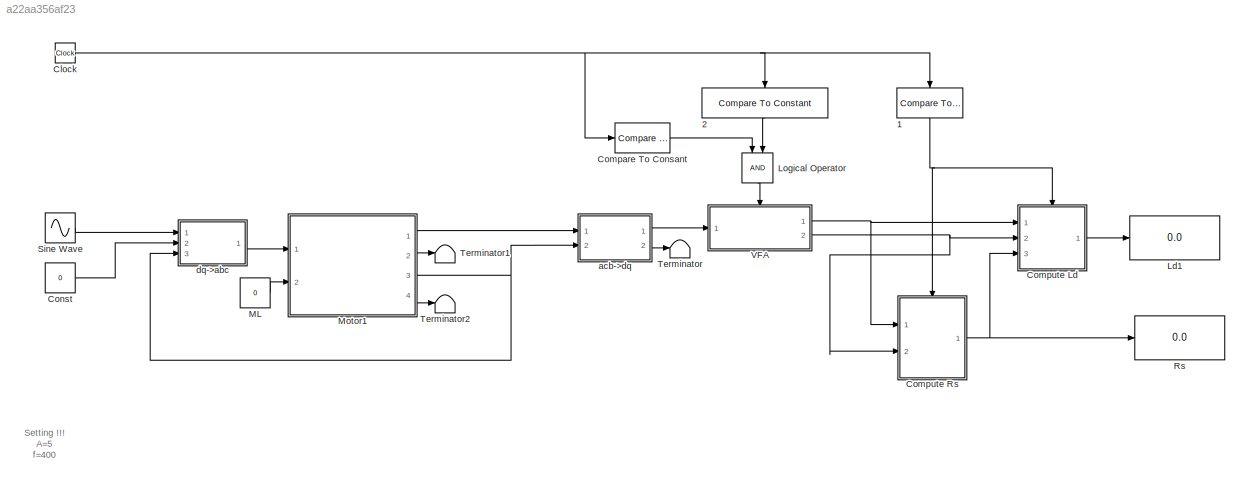
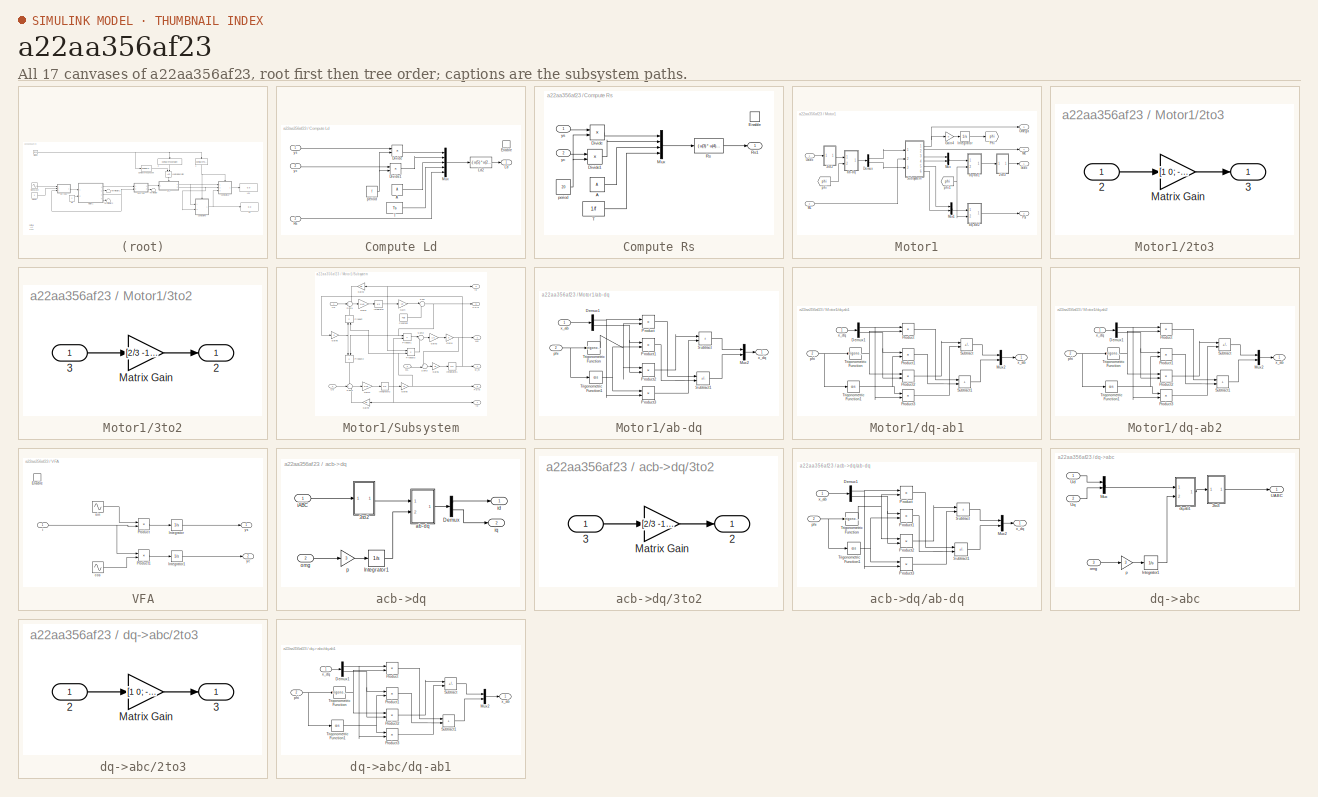
[diagram: thumbnail index - all 17 canvases of the model, root first then tree order]
MODEL mdl_a22aa356af23
KIND model
CONFIG AbsTol = auto
CONFIG EnableMultiTasking = on
CONFIG FixedStep = Ts
CONFIG MaxStep = auto
CONFIG MinStep = auto
CONFIG RelTol = 1e-3
CONFIG SampleTimeConstraint = Unconstrained
CONFIG SolverName = ode4
CONFIG StartTime = 0.0
CONFIG StopTime = 10.0
BLOCK [Reference] 1  REF=simulink/Logic and Bit
Operations/Compare
To Constant
  NameLocation = left
  Ports = [1, 1]
  SourceBlock = simulink/Logic and Bit\nOperations/Compare\nTo Constant
  SourceProductBaseCode = SL
  SourceType = Compare To Constant
BLOCK [Reference] 2  REF=simulink/Logic and Bit
Operations/Compare
To Constant
  NameLocation = left
  Ports = [1, 1]
  SourceBlock = simulink/Logic and Bit\nOperations/Compare\nTo Constant
  SourceProductBaseCode = SL
  SourceType = Compare To Constant
BLOCK [Clock] Clock
BLOCK [Reference] Compare To Consant  REF=simulink/Logic and Bit
Operations/Compare
To Constant
  Ports = [1, 1]
  SourceBlock = simulink/Logic and Bit\nOperations/Compare\nTo Constant
  SourceProductBaseCode = SL
  SourceType = Compare To Constant
BLOCK [SubSystem] Compute Ld
  Ports = [3, 1, 1]
  RequestExecContextInheritance = off
  TreatAsAtomicUnit = on
BLOCK [Constant] Compute Ld/A
  Value = A
BLOCK [Product] Compute Ld/Divide
  Inputs = */
  Ports = [2, 1]
BLOCK [Product] Compute Ld/Divide1
  Inputs = */
  Ports = [2, 1]
BLOCK [EnablePort] Compute Ld/Enable
  Ports = []
BLOCK [Outport] Compute Ld/Ld
BLOCK [Fcn] Compute Ld/Ld2
  Expr = -( u(5) * u(2) ) / ( u(1) * 2*pi*f )
BLOCK [Mux] Compute Ld/Mux
  DisplayOption = bar
  Inputs = 5
  Ports = [5, 1]
BLOCK [Inport] Compute Ld/Rs
  Port = 3
BLOCK [Constant] Compute Ld/T
  Value = Ts
BLOCK [Constant] Compute Ld/period
  Value = f
BLOCK [Inport] Compute Ld/yc
  Port = 2
BLOCK [Inport] Compute Ld/ys
BLOCK [SubSystem] Compute Rs
  Ports = [2, 1, 1]
  RequestExecContextInheritance = off
  TreatAsAtomicUnit = on
BLOCK [Constant] Compute Rs/A
  Value = A
BLOCK [Product] Compute Rs/Divide
  Inputs = */
  Ports = [2, 1]
BLOCK [Product] Compute Rs/Divide1
  Inputs = */
  Ports = [2, 1]
BLOCK [EnablePort] Compute Rs/Enable
  Ports = []
  PropagateVarSize = During execution
BLOCK [Mux] Compute Rs/Mux
  DisplayOption = bar
  Ports = [4, 1]
BLOCK [Fcn] Compute Rs/Rs
  Expr = ( u(3) * u(4) * u(1) ) / ( 2 * ( u(1)^2 + u(2)^2 ) )
BLOCK [Outport] Compute Rs/Rs1
BLOCK [Constant] Compute Rs/T
  Value = 1/f
BLOCK [Constant] Compute Rs/period
  Value = 20
BLOCK [Inport] Compute Rs/yc
  Port = 2
BLOCK [Inport] Compute Rs/ys
BLOCK [Constant] Const
  Value = 0
BLOCK [Display] Ld1
  Decimation = 1
  Ports = [1]
BLOCK [Logic] Logical Operator
  AllPortsSameDT = off
  NameLocation = left
  OutDataTypeStr = boolean
  Ports = [2, 1]
BLOCK [Constant] ML
  Value = 0
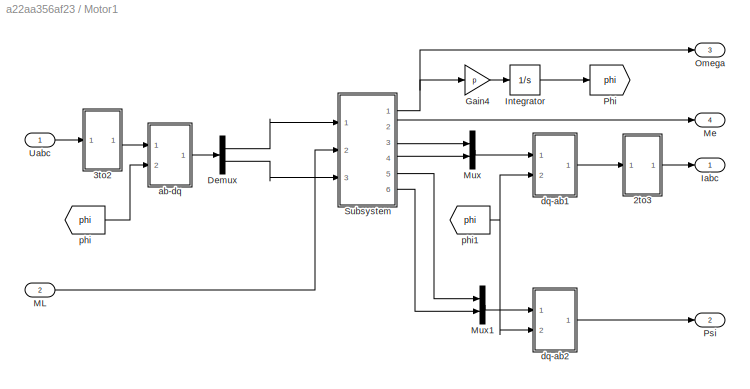
BLOCK [SubSystem] Motor1
  Ports = [2, 4]
  RequestExecContextInheritance = off
BLOCK [SubSystem] Motor1/2to3
  Ports = [1, 1]
  RequestExecContextInheritance = off
BLOCK [Inport] Motor1/2to3/2
BLOCK [Outport] Motor1/2to3/3
BLOCK [Gain] Motor1/2to3/Matrix Gain
  Gain = [1 0; -1/2 sqrt(3)/2; -1/2 -sqrt(3)/2]
  Multiplication = Matrix(K*u)
  OutDataTypeStr = Inherit: Same as input
  ParamDataTypeStr = Inherit: Same as input
  SaturateOnIntegerOverflow = on
BLOCK [SubSystem] Motor1/3to2
  Ports = [1, 1]
  RequestExecContextInheritance = off
BLOCK [Outport] Motor1/3to2/2
BLOCK [Inport] Motor1/3to2/3
BLOCK [Gain] Motor1/3to2/Matrix Gain
  Gain = [2/3 -1/3 -1/3 ; 0 1/sqrt(3) -1/sqrt(3)]
  Multiplication = Matrix(K*u)
  OutDataTypeStr = Inherit: Same as input
  ParamDataTypeStr = Inherit: Same as input
  SaturateOnIntegerOverflow = on
BLOCK [Demux] Motor1/Demux
  Outputs = 2
  Ports = [1, 2]
BLOCK [Gain] Motor1/Gain4
  Gain = p
BLOCK [Outport] Motor1/Iabc
BLOCK [Integrator] Motor1/Integrator
  Ports = [1, 1]
BLOCK [Inport] Motor1/ML
  Port = 2
BLOCK [Outport] Motor1/Me
  Port = 4
BLOCK [Mux] Motor1/Mux
  DisplayOption = bar
  Inputs = 2
  Ports = [2, 1]
BLOCK [Mux] Motor1/Mux1
  DisplayOption = bar
  Inputs = 2
  Ports = [2, 1]
BLOCK [Outport] Motor1/Omega
  Port = 3
BLOCK [Goto] Motor1/Phi
  GotoTag = phi
BLOCK [Outport] Motor1/Psi
  Port = 2
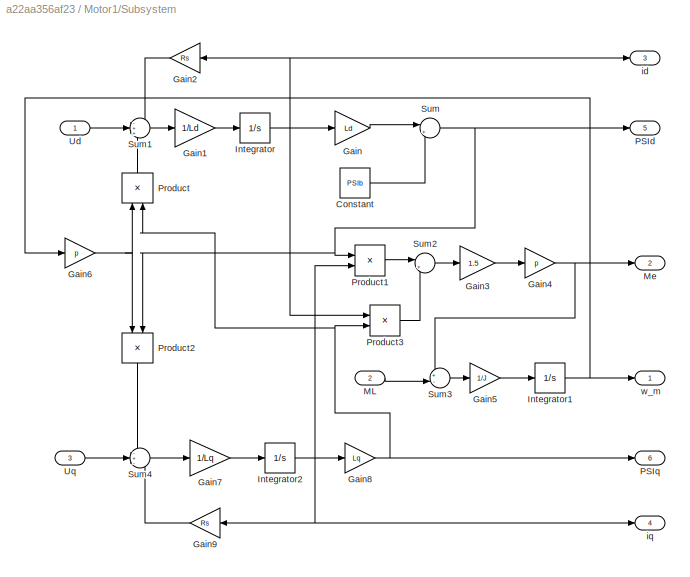
BLOCK [SubSystem] Motor1/Subsystem
  Ports = [3, 6]
  RequestExecContextInheritance = off
BLOCK [Constant] Motor1/Subsystem/Constant
  Value = PSIb
BLOCK [Gain] Motor1/Subsystem/Gain
  Gain = Ld
BLOCK [Gain] Motor1/Subsystem/Gain1
  Gain = 1/Ld
BLOCK [Gain] Motor1/Subsystem/Gain2
  Gain = Rs
BLOCK [Gain] Motor1/Subsystem/Gain3
  Gain = 1.5
BLOCK [Gain] Motor1/Subsystem/Gain4
  Gain = p
BLOCK [Gain] Motor1/Subsystem/Gain5
  Gain = 1/J
BLOCK [Gain] Motor1/Subsystem/Gain6
  Gain = p
BLOCK [Gain] Motor1/Subsystem/Gain7
  Gain = 1/Lq
BLOCK [Gain] Motor1/Subsystem/Gain8
  Gain = Lq
BLOCK [Gain] Motor1/Subsystem/Gain9
  Gain = Rs
BLOCK [Integrator] Motor1/Subsystem/Integrator
  Ports = [1, 1]
BLOCK [Integrator] Motor1/Subsystem/Integrator1
  Ports = [1, 1]
BLOCK [Integrator] Motor1/Subsystem/Integrator2
  Ports = [1, 1]
BLOCK [Inport] Motor1/Subsystem/ML
  Port = 2
BLOCK [Outport] Motor1/Subsystem/Me
  Port = 2
BLOCK [Outport] Motor1/Subsystem/PSId
  Port = 5
BLOCK [Outport] Motor1/Subsystem/PSIq
  Port = 6
BLOCK [Product] Motor1/Subsystem/Product
  NameLocation = right
  Ports = [2, 1]
  RndMeth = Zero
BLOCK [Product] Motor1/Subsystem/Product1
  Ports = [2, 1]
  RndMeth = Zero
BLOCK [Product] Motor1/Subsystem/Product2
  NameLocation = left
  Ports = [2, 1]
  RndMeth = Zero
BLOCK [Product] Motor1/Subsystem/Product3
  Ports = [2, 1]
  RndMeth = Zero
BLOCK [Sum] Motor1/Subsystem/Sum
  Inputs = |++
  Ports = [2, 1]
BLOCK [Sum] Motor1/Subsystem/Sum1
  Inputs = -++
  Ports = [3, 1]
BLOCK [Sum] Motor1/Subsystem/Sum2
  Inputs = |+-
  Ports = [2, 1]
BLOCK [Sum] Motor1/Subsystem/Sum3
  Inputs = +-|
  Ports = [2, 1]
BLOCK [Sum] Motor1/Subsystem/Sum4
  Inputs = -+-
  Ports = [3, 1]
BLOCK [Inport] Motor1/Subsystem/Ud
BLOCK [Inport] Motor1/Subsystem/Uq
  Port = 3
BLOCK [Outport] Motor1/Subsystem/id
  Port = 3
BLOCK [Outport] Motor1/Subsystem/iq
  Port = 4
BLOCK [Outport] Motor1/Subsystem/w_m
BLOCK [Inport] Motor1/Uabc
BLOCK [SubSystem] Motor1/ab-dq
  Ports = [2, 1]
  RequestExecContextInheritance = off
BLOCK [Demux] Motor1/ab-dq/Demux1
  Outputs = 2
  Ports = [1, 2]
BLOCK [Mux] Motor1/ab-dq/Mux2
  DisplayOption = bar
  Inputs = 2
  Ports = [2, 1]
BLOCK [Product] Motor1/ab-dq/Product
  Ports = [2, 1]
  RndMeth = Zero
BLOCK [Product] Motor1/ab-dq/Product1
  Ports = [2, 1]
  RndMeth = Zero
BLOCK [Product] Motor1/ab-dq/Product2
  Ports = [2, 1]
  RndMeth = Zero
BLOCK [Product] Motor1/ab-dq/Product3
  Ports = [2, 1]
  RndMeth = Zero
BLOCK [Sum] Motor1/ab-dq/Subtract
  IconShape = rectangular
  Ports = [2, 1]
BLOCK [Sum] Motor1/ab-dq/Subtract1
  IconShape = rectangular
  Inputs = -+
  Ports = [2, 1]
BLOCK [Trigonometry] Motor1/ab-dq/Trigonometric Function
  Ports = [1, 1]
BLOCK [Trigonometry] Motor1/ab-dq/Trigonometric Function1
  Operator = cos
  Ports = [1, 1]
BLOCK [Inport] Motor1/ab-dq/phi
  Port = 2
BLOCK [Inport] Motor1/ab-dq/x_ab
BLOCK [Outport] Motor1/ab-dq/x_dq
BLOCK [SubSystem] Motor1/dq-ab1
  Ports = [2, 1]
  RequestExecContextInheritance = off
BLOCK [Demux] Motor1/dq-ab1/Demux1
  Outputs = 2
  Ports = [1, 2]
BLOCK [Mux] Motor1/dq-ab1/Mux2
  DisplayOption = bar
  Inputs = 2
  Ports = [2, 1]
BLOCK [Product] Motor1/dq-ab1/Product
  Ports = [2, 1]
  RndMeth = Zero
BLOCK [Product] Motor1/dq-ab1/Product1
  Ports = [2, 1]
  RndMeth = Zero
BLOCK [Product] Motor1/dq-ab1/Product2
  Ports = [2, 1]
  RndMeth = Zero
BLOCK [Product] Motor1/dq-ab1/Product3
  Ports = [2, 1]
  RndMeth = Zero
BLOCK [Sum] Motor1/dq-ab1/Subtract
  IconShape = rectangular
  Inputs = -+
  Ports = [2, 1]
BLOCK [Sum] Motor1/dq-ab1/Subtract1
  IconShape = rectangular
  Ports = [2, 1]
BLOCK [Trigonometry] Motor1/dq-ab1/Trigonometric Function
  Ports = [1, 1]
BLOCK [Trigonometry] Motor1/dq-ab1/Trigonometric Function1
  Operator = cos
  Ports = [1, 1]
BLOCK [Inport] Motor1/dq-ab1/phi
  Port = 2
BLOCK [Outport] Motor1/dq-ab1/x_ab
BLOCK [Inport] Motor1/dq-ab1/x_dq
BLOCK [SubSystem] Motor1/dq-ab2
  Ports = [2, 1]
  RequestExecContextInheritance = off
BLOCK [Demux] Motor1/dq-ab2/Demux1
  Outputs = 2
  Ports = [1, 2]
BLOCK [Mux] Motor1/dq-ab2/Mux2
  DisplayOption = bar
  Inputs = 2
  Ports = [2, 1]
BLOCK [Product] Motor1/dq-ab2/Product
  Ports = [2, 1]
  RndMeth = Zero
BLOCK [Product] Motor1/dq-ab2/Product1
  Ports = [2, 1]
  RndMeth = Zero
BLOCK [Product] Motor1/dq-ab2/Product2
  Ports = [2, 1]
  RndMeth = Zero
BLOCK [Product] Motor1/dq-ab2/Product3
  Ports = [2, 1]
  RndMeth = Zero
BLOCK [Sum] Motor1/dq-ab2/Subtract
  IconShape = rectangular
  Inputs = -+
  Ports = [2, 1]
BLOCK [Sum] Motor1/dq-ab2/Subtract1
  IconShape = rectangular
  Ports = [2, 1]
BLOCK [Trigonometry] Motor1/dq-ab2/Trigonometric Function
  Ports = [1, 1]
BLOCK [Trigonometry] Motor1/dq-ab2/Trigonometric Function1
  Operator = cos
  Ports = [1, 1]
BLOCK [Inport] Motor1/dq-ab2/phi
  Port = 2
BLOCK [Outport] Motor1/dq-ab2/x_ab
BLOCK [Inport] Motor1/dq-ab2/x_dq
BLOCK [From] Motor1/phi
  CloseFcn = tagdialog Close
  GotoTag = phi
BLOCK [From] Motor1/phi1
  CloseFcn = tagdialog Close
  GotoTag = phi
BLOCK [Display] Rs
  Decimation = 1
  Ports = [1]
BLOCK [Sin] Sine Wave
  Amplitude = A
  Frequency = 2*pi*f
  Ports = [0, 1]
  SampleTime = 0
BLOCK [Terminator] Terminator
BLOCK [Terminator] Terminator1
BLOCK [Terminator] Terminator2
BLOCK [SubSystem] VFA
  Ports = [1, 2, 1]
  RequestExecContextInheritance = off
  TreatAsAtomicUnit = on
BLOCK [EnablePort] VFA/Enable
  Ports = []
  StatesWhenEnabling = reset
BLOCK [Integrator] VFA/Integrator
  Ports = [1, 1]
BLOCK [Integrator] VFA/Integrator1
  Ports = [1, 1]
BLOCK [Product] VFA/Product
  Ports = [2, 1]
BLOCK [Product] VFA/Product1
  Ports = [2, 1]
BLOCK [Sin] VFA/cos
  Frequency = 2*pi*f
  Phase = pi/2
  Ports = [0, 1]
BLOCK [Inport] VFA/i
  SampleTime = 125e-6
BLOCK [Sin] VFA/sin
  Frequency = 2*pi*f
  Ports = [0, 1]
  SampleTime = 0
BLOCK [Outport] VFA/yc
  Port = 2
BLOCK [Outport] VFA/ys
BLOCK [SubSystem] acb->dq
  Ports = [2, 2]
  RequestExecContextInheritance = off
  TreatAsAtomicUnit = on
BLOCK [SubSystem] acb->dq/3to2
  Ports = [1, 1]
  RequestExecContextInheritance = off
BLOCK [Outport] acb->dq/3to2/2
BLOCK [Inport] acb->dq/3to2/3
BLOCK [Gain] acb->dq/3to2/Matrix Gain
  Gain = [2/3 -1/3 -1/3 ; 0 1/sqrt(3) -1/sqrt(3)]
  Multiplication = Matrix(K*u)
  OutDataTypeStr = Inherit: Same as input
  ParamDataTypeStr = Inherit: Same as input
  SaturateOnIntegerOverflow = on
BLOCK [Demux] acb->dq/Demux
  Outputs = 2
  Ports = [1, 2]
BLOCK [Integrator] acb->dq/Integrator1
  Ports = [1, 1]
BLOCK [SubSystem] acb->dq/ab-dq
  Ports = [2, 1]
  RequestExecContextInheritance = off
BLOCK [Demux] acb->dq/ab-dq/Demux1
  Outputs = 2
  Ports = [1, 2]
BLOCK [Mux] acb->dq/ab-dq/Mux2
  DisplayOption = bar
  Inputs = 2
  Ports = [2, 1]
BLOCK [Product] acb->dq/ab-dq/Product
  Ports = [2, 1]
  RndMeth = Zero
BLOCK [Product] acb->dq/ab-dq/Product1
  Ports = [2, 1]
  RndMeth = Zero
BLOCK [Product] acb->dq/ab-dq/Product2
  Ports = [2, 1]
  RndMeth = Zero
BLOCK [Product] acb->dq/ab-dq/Product3
  Ports = [2, 1]
  RndMeth = Zero
BLOCK [Sum] acb->dq/ab-dq/Subtract
  IconShape = rectangular
  Ports = [2, 1]
BLOCK [Sum] acb->dq/ab-dq/Subtract1
  IconShape = rectangular
  Inputs = -+
  Ports = [2, 1]
BLOCK [Trigonometry] acb->dq/ab-dq/Trigonometric Function
  Ports = [1, 1]
BLOCK [Trigonometry] acb->dq/ab-dq/Trigonometric Function1
  Operator = cos
  Ports = [1, 1]
BLOCK [Inport] acb->dq/ab-dq/phi
  Port = 2
BLOCK [Inport] acb->dq/ab-dq/x_ab
BLOCK [Outport] acb->dq/ab-dq/x_dq
BLOCK [Inport] acb->dq/iABC
BLOCK [Outport] acb->dq/id
BLOCK [Outport] acb->dq/iq
  Port = 2
BLOCK [Inport] acb->dq/omg
  Port = 2
BLOCK [Gain] acb->dq/p
  Gain = 3
BLOCK [SubSystem] dq->abc
  Ports = [3, 1]
  RequestExecContextInheritance = off
BLOCK [SubSystem] dq->abc/2to3
  Ports = [1, 1]
  RequestExecContextInheritance = off
BLOCK [Inport] dq->abc/2to3/2
BLOCK [Outport] dq->abc/2to3/3
BLOCK [Gain] dq->abc/2to3/Matrix Gain
  Gain = [1 0; -1/2 sqrt(3)/2; -1/2 -sqrt(3)/2]
  Multiplication = Matrix(K*u)
  OutDataTypeStr = Inherit: Same as input
  ParamDataTypeStr = Inherit: Same as input
  SaturateOnIntegerOverflow = on
BLOCK [Integrator] dq->abc/Integrator1
  Ports = [1, 1]
BLOCK [Mux] dq->abc/Mux
  DisplayOption = bar
  Inputs = 2
  Ports = [2, 1]
BLOCK [Outport] dq->abc/UABC
BLOCK [Inport] dq->abc/Ud
BLOCK [Inport] dq->abc/Uq
  Port = 2
BLOCK [SubSystem] dq->abc/dq-ab1
  Ports = [2, 1]
  RequestExecContextInheritance = off
BLOCK [Demux] dq->abc/dq-ab1/Demux1
  Outputs = 2
  Ports = [1, 2]
BLOCK [Mux] dq->abc/dq-ab1/Mux2
  DisplayOption = bar
  Inputs = 2
  Ports = [2, 1]
BLOCK [Product] dq->abc/dq-ab1/Product
  Ports = [2, 1]
  RndMeth = Zero
BLOCK [Product] dq->abc/dq-ab1/Product1
  Ports = [2, 1]
  RndMeth = Zero
BLOCK [Product] dq->abc/dq-ab1/Product2
  Ports = [2, 1]
  RndMeth = Zero
BLOCK [Product] dq->abc/dq-ab1/Product3
  Ports = [2, 1]
  RndMeth = Zero
BLOCK [Sum] dq->abc/dq-ab1/Subtract
  IconShape = rectangular
  Inputs = -+
  Ports = [2, 1]
BLOCK [Sum] dq->abc/dq-ab1/Subtract1
  IconShape = rectangular
  Ports = [2, 1]
BLOCK [Trigonometry] dq->abc/dq-ab1/Trigonometric Function
  Ports = [1, 1]
BLOCK [Trigonometry] dq->abc/dq-ab1/Trigonometric Function1
  Operator = cos
  Ports = [1, 1]
BLOCK [Inport] dq->abc/dq-ab1/phi
  Port = 2
BLOCK [Outport] dq->abc/dq-ab1/x_ab
BLOCK [Inport] dq->abc/dq-ab1/x_dq
BLOCK [Inport] dq->abc/omg
  Port = 3
BLOCK [Gain] dq->abc/p
  Gain = 3
ANNOTATION (root): Setting !!! A=5 f=400
NET 1:1 -> Compute Ld:enable, Compute Rs:enable
LINE 2:1 -> Logical Operator:2
NET Clock:1 -> 1:1, 2:1, Compare To Consant:1
LINE Compare To Consant:1 -> Logical Operator:1
LINE Compute Ld/A:1 -> Compute Ld/Mux:3
LINE Compute Ld/Divide1:1 -> Compute Ld/Mux:2
LINE Compute Ld/Divide:1 -> Compute Ld/Mux:1
LINE Compute Ld/Ld2:1 -> Compute Ld/Ld:1
LINE Compute Ld/Mux:1 -> Compute Ld/Ld2:1
LINE Compute Ld/Rs:1 -> Compute Ld/Mux:5
LINE Compute Ld/T:1 -> Compute Ld/Mux:4
NET Compute Ld/period:1 -> Compute Ld/Divide1:2, Compute Ld/Divide:2
LINE Compute Ld/yc:1 -> Compute Ld/Divide1:1
LINE Compute Ld/ys:1 -> Compute Ld/Divide:1
LINE Compute Ld:1 -> Ld1:1
LINE Compute Rs/A:1 -> Compute Rs/Mux:3
LINE Compute Rs/Divide1:1 -> Compute Rs/Mux:2
LINE Compute Rs/Divide:1 -> Compute Rs/Mux:1
LINE Compute Rs/Mux:1 -> Compute Rs/Rs:1
LINE Compute Rs/Rs:1 -> Compute Rs/Rs1:1
LINE Compute Rs/T:1 -> Compute Rs/Mux:4
NET Compute Rs/period:1 -> Compute Rs/Divide1:2, Compute Rs/Divide:2
LINE Compute Rs/yc:1 -> Compute Rs/Divide1:1
LINE Compute Rs/ys:1 -> Compute Rs/Divide:1
NET Compute Rs:1 -> Compute Ld:3, Rs:1
LINE Const:1 -> dq->abc:2
LINE Logical Operator:1 -> VFA:enable
LINE ML:1 -> Motor1:2
LINE Motor1/2to3/2:1 -> Motor1/2to3/Matrix Gain:1
LINE Motor1/2to3/Matrix Gain:1 -> Motor1/2to3/3:1
LINE Motor1/2to3:1 -> Motor1/Iabc:1
LINE Motor1/3to2/3:1 -> Motor1/3to2/Matrix Gain:1
LINE Motor1/3to2/Matrix Gain:1 -> Motor1/3to2/2:1
LINE Motor1/3to2:1 -> Motor1/ab-dq:1
LINE Motor1/Demux:1 -> Motor1/Subsystem:1
LINE Motor1/Demux:2 -> Motor1/Subsystem:3
LINE Motor1/Gain4:1 -> Motor1/Integrator:1
LINE Motor1/Integrator:1 -> Motor1/Phi:1
LINE Motor1/ML:1 -> Motor1/Subsystem:2
LINE Motor1/Mux1:1 -> Motor1/dq-ab2:1
LINE Motor1/Mux:1 -> Motor1/dq-ab1:1
LINE Motor1/Subsystem/Constant:1 -> Motor1/Subsystem/Sum:2
LINE Motor1/Subsystem/Gain1:1 -> Motor1/Subsystem/Integrator:1
LINE Motor1/Subsystem/Gain2:1 -> Motor1/Subsystem/Sum1:1
LINE Motor1/Subsystem/Gain3:1 -> Motor1/Subsystem/Gain4:1
NET Motor1/Subsystem/Gain4:1 -> Motor1/Subsystem/Me:1, Motor1/Subsystem/Sum3:1
LINE Motor1/Subsystem/Gain5:1 -> Motor1/Subsystem/Integrator1:1
NET Motor1/Subsystem/Gain6:1 -> Motor1/Subsystem/Product2:1, Motor1/Subsystem/Product:1
LINE Motor1/Subsystem/Gain7:1 -> Motor1/Subsystem/Integrator2:1
NET Motor1/Subsystem/Gain8:1 -> Motor1/Subsystem/PSIq:1, Motor1/Subsystem/Product3:2, Motor1/Subsystem/Product:2
LINE Motor1/Subsystem/Gain9:1 -> Motor1/Subsystem/Sum4:3
LINE Motor1/Subsystem/Gain:1 -> Motor1/Subsystem/Sum:1
NET Motor1/Subsystem/Integrator1:1 -> Motor1/Subsystem/Gain6:1, Motor1/Subsystem/w_m:1
NET Motor1/Subsystem/Integrator2:1 -> Motor1/Subsystem/Gain8:1, Motor1/Subsystem/Gain9:1, Motor1/Subsystem/Product1:2, Motor1/Subsystem/iq:1
NET Motor1/Subsystem/Integrator:1 -> Motor1/Subsystem/Gain2:1, Motor1/Subsystem/Gain:1, Motor1/Subsystem/Product3:1, Motor1/Subsystem/id:1
LINE Motor1/Subsystem/ML:1 -> Motor1/Subsystem/Sum3:2
LINE Motor1/Subsystem/Product1:1 -> Motor1/Subsystem/Sum2:1
LINE Motor1/Subsystem/Product2:1 -> Motor1/Subsystem/Sum4:1
LINE Motor1/Subsystem/Product3:1 -> Motor1/Subsystem/Sum2:2
LINE Motor1/Subsystem/Product:1 -> Motor1/Subsystem/Sum1:3
LINE Motor1/Subsystem/Sum1:1 -> Motor1/Subsystem/Gain1:1
LINE Motor1/Subsystem/Sum2:1 -> Motor1/Subsystem/Gain3:1
LINE Motor1/Subsystem/Sum3:1 -> Motor1/Subsystem/Gain5:1
LINE Motor1/Subsystem/Sum4:1 -> Motor1/Subsystem/Gain7:1
NET Motor1/Subsystem/Sum:1 -> Motor1/Subsystem/PSId:1, Motor1/Subsystem/Product1:1, Motor1/Subsystem/Product2:2
LINE Motor1/Subsystem/Ud:1 -> Motor1/Subsystem/Sum1:2
LINE Motor1/Subsystem/Uq:1 -> Motor1/Subsystem/Sum4:2
NET Motor1/Subsystem:1 -> Motor1/Gain4:1, Motor1/Omega:1
LINE Motor1/Subsystem:2 -> Motor1/Me:1
LINE Motor1/Subsystem:3 -> Motor1/Mux:1
LINE Motor1/Subsystem:4 -> Motor1/Mux:2
LINE Motor1/Subsystem:5 -> Motor1/Mux1:1
LINE Motor1/Subsystem:6 -> Motor1/Mux1:2
LINE Motor1/Uabc:1 -> Motor1/3to2:1
NET Motor1/ab-dq/Demux1:1 -> Motor1/ab-dq/Product3:2, Motor1/ab-dq/Product:1
NET Motor1/ab-dq/Demux1:2 -> Motor1/ab-dq/Product1:1, Motor1/ab-dq/Product2:2
LINE Motor1/ab-dq/Mux2:1 -> Motor1/ab-dq/x_dq:1
LINE Motor1/ab-dq/Product1:1 -> Motor1/ab-dq/Subtract1:2
LINE Motor1/ab-dq/Product2:1 -> Motor1/ab-dq/Subtract:1
LINE Motor1/ab-dq/Product3:1 -> Motor1/ab-dq/Subtract:2
LINE Motor1/ab-dq/Product:1 -> Motor1/ab-dq/Subtract1:1
LINE Motor1/ab-dq/Subtract1:1 -> Motor1/ab-dq/Mux2:2
LINE Motor1/ab-dq/Subtract:1 -> Motor1/ab-dq/Mux2:1
NET Motor1/ab-dq/Trigonometric Function1:1 -> Motor1/ab-dq/Product1:2, Motor1/ab-dq/Product3:1
NET Motor1/ab-dq/Trigonometric Function:1 -> Motor1/ab-dq/Product2:1, Motor1/ab-dq/Product:2
NET Motor1/ab-dq/phi:1 -> Motor1/ab-dq/Trigonometric Function1:1, Motor1/ab-dq/Trigonometric Function:1
LINE Motor1/ab-dq/x_ab:1 -> Motor1/ab-dq/Demux1:1
LINE Motor1/ab-dq:1 -> Motor1/Demux:1
NET Motor1/dq-ab1/Demux1:1 -> Motor1/dq-ab1/Product3:2, Motor1/dq-ab1/Product:1
NET Motor1/dq-ab1/Demux1:2 -> Motor1/dq-ab1/Product1:1, Motor1/dq-ab1/Product2:2
LINE Motor1/dq-ab1/Mux2:1 -> Motor1/dq-ab1/x_ab:1
LINE Motor1/dq-ab1/Product1:1 -> Motor1/dq-ab1/Subtract1:2
LINE Motor1/dq-ab1/Product2:1 -> Motor1/dq-ab1/Subtract:1
LINE Motor1/dq-ab1/Product3:1 -> Motor1/dq-ab1/Subtract:2
LINE Motor1/dq-ab1/Product:1 -> Motor1/dq-ab1/Subtract1:1
LINE Motor1/dq-ab1/Subtract1:1 -> Motor1/dq-ab1/Mux2:2
LINE Motor1/dq-ab1/Subtract:1 -> Motor1/dq-ab1/Mux2:1
NET Motor1/dq-ab1/Trigonometric Function1:1 -> Motor1/dq-ab1/Product1:2, Motor1/dq-ab1/Product3:1
NET Motor1/dq-ab1/Trigonometric Function:1 -> Motor1/dq-ab1/Product2:1, Motor1/dq-ab1/Product:2
NET Motor1/dq-ab1/phi:1 -> Motor1/dq-ab1/Trigonometric Function1:1, Motor1/dq-ab1/Trigonometric Function:1
LINE Motor1/dq-ab1/x_dq:1 -> Motor1/dq-ab1/Demux1:1
LINE Motor1/dq-ab1:1 -> Motor1/2to3:1
NET Motor1/dq-ab2/Demux1:1 -> Motor1/dq-ab2/Product3:2, Motor1/dq-ab2/Product:1
NET Motor1/dq-ab2/Demux1:2 -> Motor1/dq-ab2/Product1:1, Motor1/dq-ab2/Product2:2
LINE Motor1/dq-ab2/Mux2:1 -> Motor1/dq-ab2/x_ab:1
LINE Motor1/dq-ab2/Product1:1 -> Motor1/dq-ab2/Subtract1:2
LINE Motor1/dq-ab2/Product2:1 -> Motor1/dq-ab2/Subtract:1
LINE Motor1/dq-ab2/Product3:1 -> Motor1/dq-ab2/Subtract:2
LINE Motor1/dq-ab2/Product:1 -> Motor1/dq-ab2/Subtract1:1
LINE Motor1/dq-ab2/Subtract1:1 -> Motor1/dq-ab2/Mux2:2
LINE Motor1/dq-ab2/Subtract:1 -> Motor1/dq-ab2/Mux2:1
NET Motor1/dq-ab2/Trigonometric Function1:1 -> Motor1/dq-ab2/Product1:2, Motor1/dq-ab2/Product3:1
NET Motor1/dq-ab2/Trigonometric Function:1 -> Motor1/dq-ab2/Product2:1, Motor1/dq-ab2/Product:2
NET Motor1/dq-ab2/phi:1 -> Motor1/dq-ab2/Trigonometric Function1:1, Motor1/dq-ab2/Trigonometric Function:1
LINE Motor1/dq-ab2/x_dq:1 -> Motor1/dq-ab2/Demux1:1
LINE Motor1/dq-ab2:1 -> Motor1/Psi:1
NET Motor1/phi1:1 -> Motor1/dq-ab1:2, Motor1/dq-ab2:2
LINE Motor1/phi:1 -> Motor1/ab-dq:2
LINE Motor1:1 -> acb->dq:1
LINE Motor1:2 -> Terminator1:1
NET Motor1:3 -> acb->dq:2, dq->abc:3
LINE Motor1:4 -> Terminator2:1
LINE Sine Wave:1 -> dq->abc:1
LINE VFA/Integrator1:1 -> VFA/yc:1
LINE VFA/Integrator:1 -> VFA/ys:1
LINE VFA/Product1:1 -> VFA/Integrator1:1
LINE VFA/Product:1 -> VFA/Integrator:1
LINE VFA/cos:1 -> VFA/Product1:2
NET VFA/i:1 -> VFA/Product1:1, VFA/Product:2
LINE VFA/sin:1 -> VFA/Product:1
NET VFA:1 -> Compute Ld:1, Compute Rs:1
NET VFA:2 -> Compute Ld:2, Compute Rs:2
LINE acb->dq/3to2/3:1 -> acb->dq/3to2/Matrix Gain:1
LINE acb->dq/3to2/Matrix Gain:1 -> acb->dq/3to2/2:1
LINE acb->dq/3to2:1 -> acb->dq/ab-dq:1
LINE acb->dq/Demux:1 -> acb->dq/id:1
LINE acb->dq/Demux:2 -> acb->dq/iq:1
LINE acb->dq/Integrator1:1 -> acb->dq/ab-dq:2
NET acb->dq/ab-dq/Demux1:1 -> acb->dq/ab-dq/Product3:2, acb->dq/ab-dq/Product:1
NET acb->dq/ab-dq/Demux1:2 -> acb->dq/ab-dq/Product1:1, acb->dq/ab-dq/Product2:2
LINE acb->dq/ab-dq/Mux2:1 -> acb->dq/ab-dq/x_dq:1
LINE acb->dq/ab-dq/Product1:1 -> acb->dq/ab-dq/Subtract1:2
LINE acb->dq/ab-dq/Product2:1 -> acb->dq/ab-dq/Subtract:1
LINE acb->dq/ab-dq/Product3:1 -> acb->dq/ab-dq/Subtract:2
LINE acb->dq/ab-dq/Product:1 -> acb->dq/ab-dq/Subtract1:1
LINE acb->dq/ab-dq/Subtract1:1 -> acb->dq/ab-dq/Mux2:2
LINE acb->dq/ab-dq/Subtract:1 -> acb->dq/ab-dq/Mux2:1
NET acb->dq/ab-dq/Trigonometric Function1:1 -> acb->dq/ab-dq/Product1:2, acb->dq/ab-dq/Product3:1
NET acb->dq/ab-dq/Trigonometric Function:1 -> acb->dq/ab-dq/Product2:1, acb->dq/ab-dq/Product:2
NET acb->dq/ab-dq/phi:1 -> acb->dq/ab-dq/Trigonometric Function1:1, acb->dq/ab-dq/Trigonometric Function:1
LINE acb->dq/ab-dq/x_ab:1 -> acb->dq/ab-dq/Demux1:1
LINE acb->dq/ab-dq:1 -> acb->dq/Demux:1
LINE acb->dq/iABC:1 -> acb->dq/3to2:1
LINE acb->dq/omg:1 -> acb->dq/p:1
LINE acb->dq/p:1 -> acb->dq/Integrator1:1
LINE acb->dq:1 -> VFA:1
LINE acb->dq:2 -> Terminator:1
LINE dq->abc/2to3/2:1 -> dq->abc/2to3/Matrix Gain:1
LINE dq->abc/2to3/Matrix Gain:1 -> dq->abc/2to3/3:1
LINE dq->abc/2to3:1 -> dq->abc/UABC:1
LINE dq->abc/Integrator1:1 -> dq->abc/dq-ab1:2
LINE dq->abc/Mux:1 -> dq->abc/dq-ab1:1
LINE dq->abc/Ud:1 -> dq->abc/Mux:1
LINE dq->abc/Uq:1 -> dq->abc/Mux:2
NET dq->abc/dq-ab1/Demux1:1 -> dq->abc/dq-ab1/Product3:2, dq->abc/dq-ab1/Product:1
NET dq->abc/dq-ab1/Demux1:2 -> dq->abc/dq-ab1/Product1:1, dq->abc/dq-ab1/Product2:2
LINE dq->abc/dq-ab1/Mux2:1 -> dq->abc/dq-ab1/x_ab:1
LINE dq->abc/dq-ab1/Product1:1 -> dq->abc/dq-ab1/Subtract1:2
LINE dq->abc/dq-ab1/Product2:1 -> dq->abc/dq-ab1/Subtract:1
LINE dq->abc/dq-ab1/Product3:1 -> dq->abc/dq-ab1/Subtract:2
LINE dq->abc/dq-ab1/Product:1 -> dq->abc/dq-ab1/Subtract1:1
LINE dq->abc/dq-ab1/Subtract1:1 -> dq->abc/dq-ab1/Mux2:2
LINE dq->abc/dq-ab1/Subtract:1 -> dq->abc/dq-ab1/Mux2:1
NET dq->abc/dq-ab1/Trigonometric Function1:1 -> dq->abc/dq-ab1/Product1:2, dq->abc/dq-ab1/Product3:1
NET dq->abc/dq-ab1/Trigonometric Function:1 -> dq->abc/dq-ab1/Product2:1, dq->abc/dq-ab1/Product:2
NET dq->abc/dq-ab1/phi:1 -> dq->abc/dq-ab1/Trigonometric Function1:1, dq->abc/dq-ab1/Trigonometric Function:1
LINE dq->abc/dq-ab1/x_dq:1 -> dq->abc/dq-ab1/Demux1:1
LINE dq->abc/dq-ab1:1 -> dq->abc/2to3:1
LINE dq->abc/omg:1 -> dq->abc/p:1
LINE dq->abc/p:1 -> dq->abc/Integrator1:1
LINE dq->abc:1 -> Motor1:1
note: NET lines group one-source signal fan-out (src -> all destinations, sorted); 1:1 wires keep LINE
